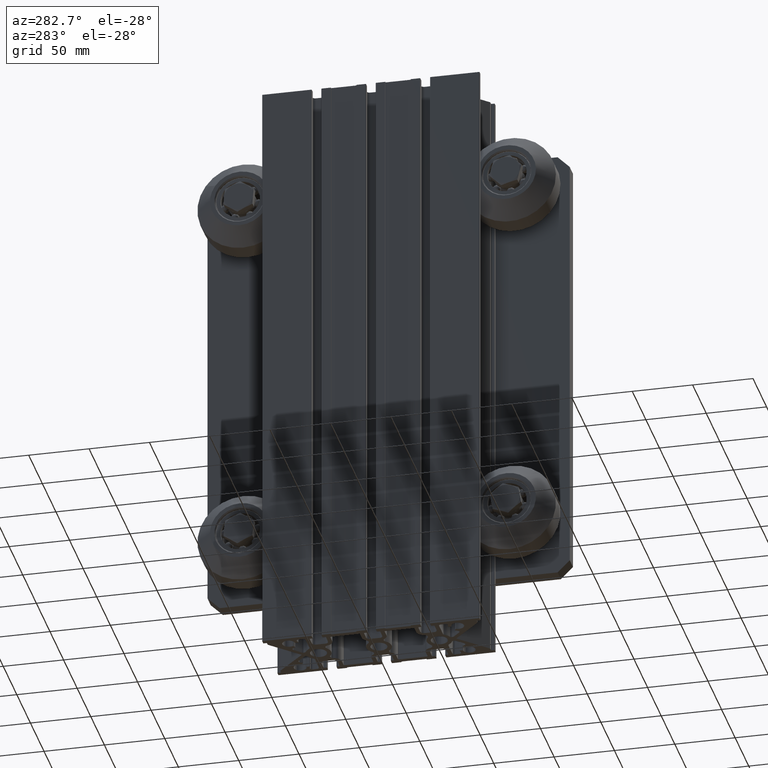
[diagram: clean part render]
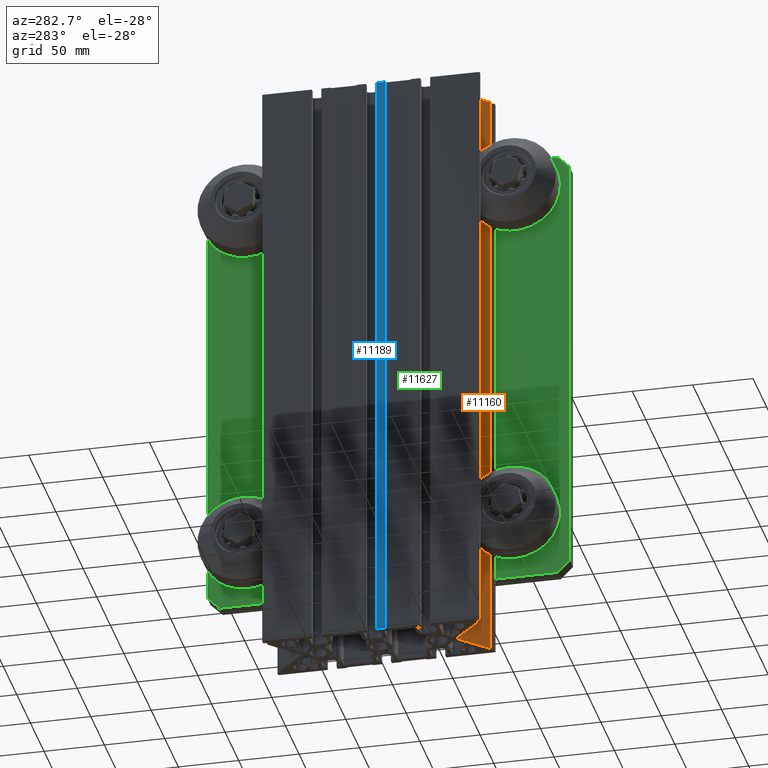
[diagram: same view with three faces highlighted in distinct colors, each labeled with its STEP entity id]
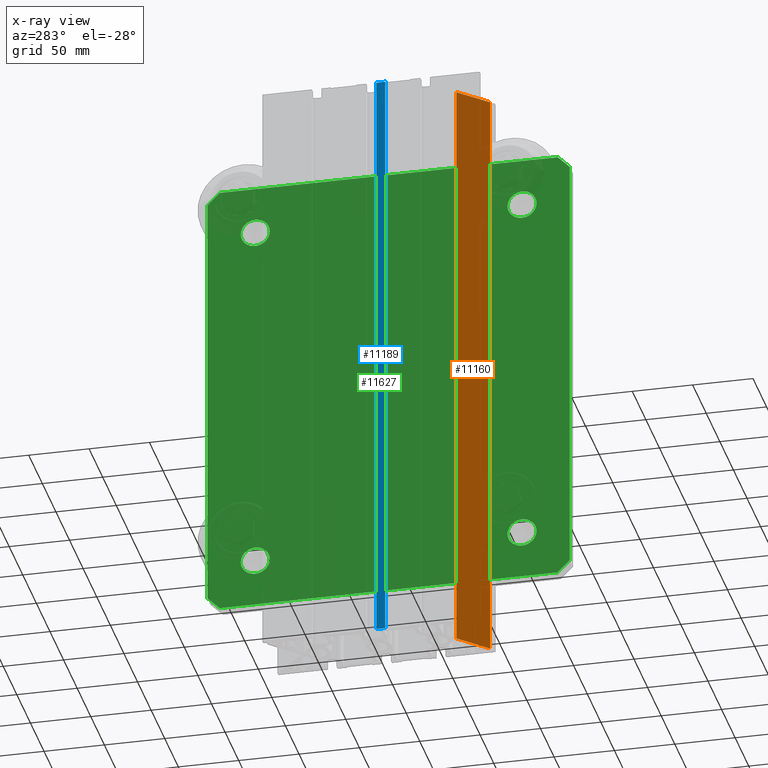
[diagram: x-ray of the same camera — body ghosted, the three highlighted faces saturated]
A machine part, auxiliary view with three faces highlighted in distinct colors.
The next image is the same camera in x-ray (body ghosted, the three faces saturated) — at least one of them is partly hidden behind the body in this view.
Their STEP definitions:

[orange] entity #11160 — the highlighted planar face has unit normal (-0.7071, -0.7071, 0).
#574=PLANE('',#12325);
#1016=FACE_OUTER_BOUND('',#1635,.T.);
#1635=EDGE_LOOP('',(#8406,#8407,#8408,#8409));
#2242=LINE('',#16866,#3114);
#2440=LINE('',#17563,#3312);
#2524=LINE('',#17843,#3396);
#2525=LINE('',#17845,#3397);
#3114=VECTOR('',#13407,10.);
#3312=VECTOR('',#14131,10.);
#3396=VECTOR('',#14339,10.);
#3397=VECTOR('',#14342,10.);
#4663=VERTEX_POINT('',#16863);
#4664=VERTEX_POINT('',#16865);
#4899=VERTEX_POINT('',#17560);
#4900=VERTEX_POINT('',#17562);
#5826=EDGE_CURVE('',#4663,#4664,#2242,.T.);
#6174=EDGE_CURVE('',#4899,#4900,#2440,.T.);
#6315=EDGE_CURVE('',#4899,#4664,#2524,.T.);
#6316=EDGE_CURVE('',#4900,#4663,#2525,.T.);
#8406=ORIENTED_EDGE('',*,*,#6315,.T.);
#8407=ORIENTED_EDGE('',*,*,#5826,.F.);
#8408=ORIENTED_EDGE('',*,*,#6316,.F.);
#8409=ORIENTED_EDGE('',*,*,#6174,.F.);
#11160=ADVANCED_FACE('',(#1016),#574,.T.);
#12325=AXIS2_PLACEMENT_3D('',#17844,#14340,#14341);
#13407=DIRECTION('',(0.707106781194663,-0.707106781178432,0.));
#14131=DIRECTION('',(-0.707106781194663,0.707106781178432,0.));
#14339=DIRECTION('',(0.,0.,1.));
#14340=DIRECTION('center_axis',(-0.707106781178432,-0.707106781194663,0.));
#14341=DIRECTION('ref_axis',(0.707106781194663,-0.707106781178432,0.));
#14342=DIRECTION('',(0.,0.,1.));
#16863=CARTESIAN_POINT('',(7.68511476678668E-9,-64.0000000013353,450.));
#16865=CARTESIAN_POINT('',(22.8535533879081,-86.8535533810338,450.));
#16866=CARTESIAN_POINT('',(7.68511476678668E-9,-64.0000000013353,450.));
#17560=CARTESIAN_POINT('',(22.8535533879081,-86.8535533810338,-50.));
#17562=CARTESIAN_POINT('',(7.68511476678668E-9,-64.0000000013353,-50.));
#17563=CARTESIAN_POINT('',(7.68511476678668E-9,-64.0000000013353,-50.));
#17843=CARTESIAN_POINT('',(22.8535533879081,-86.8535533810338,0.));
#17844=CARTESIAN_POINT('Origin',(7.68511476678668E-9,-64.0000000013353,
0.));
#17845=CARTESIAN_POINT('',(7.68511476678668E-9,-64.0000000013353,0.));

[blue] entity #11189 — the highlighted planar face has unit normal (-1, -0, 0).
#591=PLANE('',#12354);
#1045=FACE_OUTER_BOUND('',#1664,.T.);
#1664=EDGE_LOOP('',(#8522,#8523,#8524,#8525));
#2225=LINE('',#16808,#3097);
#2457=LINE('',#17621,#3329);
#2553=LINE('',#17901,#3425);
#2554=LINE('',#17903,#3426);
#3097=VECTOR('',#13366,10.);
#3329=VECTOR('',#14172,10.);
#3425=VECTOR('',#14426,10.);
#3426=VECTOR('',#14429,10.);
#4634=VERTEX_POINT('',#16805);
#4635=VERTEX_POINT('',#16807);
#4928=VERTEX_POINT('',#17618);
#4929=VERTEX_POINT('',#17620);
#5797=EDGE_CURVE('',#4634,#4635,#2225,.T.);
#6203=EDGE_CURVE('',#4928,#4929,#2457,.T.);
#6344=EDGE_CURVE('',#4928,#4635,#2553,.T.);
#6345=EDGE_CURVE('',#4929,#4634,#2554,.T.);
#8522=ORIENTED_EDGE('',*,*,#6344,.T.);
#8523=ORIENTED_EDGE('',*,*,#5797,.F.);
#8524=ORIENTED_EDGE('',*,*,#6345,.F.);
#8525=ORIENTED_EDGE('',*,*,#6203,.F.);
#11189=ADVANCED_FACE('',(#1045),#591,.T.);
#12354=AXIS2_PLACEMENT_3D('',#17902,#14427,#14428);
#13366=DIRECTION('',(1.18423789293356E-15,-1.,0.));
#14172=DIRECTION('',(-5.9211894646678E-16,1.,0.));
#14426=DIRECTION('',(0.,0.,1.));
#14427=DIRECTION('center_axis',(-1.,-5.9211894646678E-16,0.));
#14428=DIRECTION('ref_axis',(5.9211894646678E-16,-1.,0.));
#14429=DIRECTION('',(0.,0.,1.));
#16805=CARTESIAN_POINT('',(-29.9999999923147,-4.49999999043653,450.));
#16807=CARTESIAN_POINT('',(-29.9999999923147,-11.9999999904361,450.));
#16808=CARTESIAN_POINT('',(-29.9999999923147,-4.49999999043653,450.));
#17618=CARTESIAN_POINT('',(-29.9999999923147,-11.9999999904361,-50.));
#17620=CARTESIAN_POINT('',(-29.9999999923147,-4.49999999043653,-50.));
#17621=CARTESIAN_POINT('',(-29.9999999923147,-4.49999999043653,-50.));
#17901=CARTESIAN_POINT('',(-29.9999999923147,-11.9999999904361,0.));
#17902=CARTESIAN_POINT('Origin',(-29.9999999923147,-4.49999999043653,0.));
#17903=CARTESIAN_POINT('',(-29.9999999923147,-4.49999999043653,0.));

[green] entity #11627 — the highlighted planar face has unit normal (1, -0, 0).
#522=FACE_BOUND('',#2141,.T.);
#523=FACE_BOUND('',#2142,.T.);
#524=FACE_BOUND('',#2143,.T.);
#525=FACE_BOUND('',#2144,.T.);
#886=PLANE('',#13161);
#1483=FACE_OUTER_BOUND('',#2140,.T.);
#2140=EDGE_LOOP('',(#10810,#10811,#10812,#10813,#10814,#10815,#10816,#10817));
#2141=EDGE_LOOP('',(#10818));
#2142=EDGE_LOOP('',(#10819));
#2143=EDGE_LOOP('',(#10820));
#2144=EDGE_LOOP('',(#10821));
#3006=LINE('',#21142,#3878);
#3008=LINE('',#21146,#3880);
#3011=LINE('',#21152,#3883);
#3012=LINE('',#21154,#3884);
#3013=LINE('',#21156,#3885);
#3014=LINE('',#21158,#3886);
#3015=LINE('',#21160,#3887);
#3016=LINE('',#21161,#3888);
#3878=VECTOR('',#16491,10.);
#3880=VECTOR('',#16495,10.);
#3883=VECTOR('',#16500,10.);
#3884=VECTOR('',#16501,10.);
#3885=VECTOR('',#16502,10.);
#3886=VECTOR('',#16503,10.);
#3887=VECTOR('',#16504,10.);
#3888=VECTOR('',#16505,10.);
#4513=CIRCLE('',#13162,12.);
#4514=CIRCLE('',#13163,12.);
#4515=CIRCLE('',#13164,12.);
#4516=CIRCLE('',#13165,12.);
#5659=VERTEX_POINT('',#21139);
#5660=VERTEX_POINT('',#21141);
#5661=VERTEX_POINT('',#21145);
#5663=VERTEX_POINT('',#21151);
#5664=VERTEX_POINT('',#21153);
#5665=VERTEX_POINT('',#21155);
#5666=VERTEX_POINT('',#21157);
#5667=VERTEX_POINT('',#21159);
#5668=VERTEX_POINT('',#21162);
#5669=VERTEX_POINT('',#21164);
#5670=VERTEX_POINT('',#21166);
#5671=VERTEX_POINT('',#21168);
#7378=EDGE_CURVE('',#5659,#5660,#3006,.T.);
#7380=EDGE_CURVE('',#5661,#5660,#3008,.T.);
#7383=EDGE_CURVE('',#5659,#5663,#3011,.T.);
#7384=EDGE_CURVE('',#5664,#5663,#3012,.T.);
#7385=EDGE_CURVE('',#5664,#5665,#3013,.T.);
#7386=EDGE_CURVE('',#5666,#5665,#3014,.T.);
#7387=EDGE_CURVE('',#5666,#5667,#3015,.T.);
#7388=EDGE_CURVE('',#5661,#5667,#3016,.T.);
#7389=EDGE_CURVE('',#5668,#5668,#4513,.T.);
#7390=EDGE_CURVE('',#5669,#5669,#4514,.T.);
#7391=EDGE_CURVE('',#5670,#5670,#4515,.T.);
#7392=EDGE_CURVE('',#5671,#5671,#4516,.T.);
#10810=ORIENTED_EDGE('',*,*,#7378,.F.);
#10811=ORIENTED_EDGE('',*,*,#7383,.T.);
#10812=ORIENTED_EDGE('',*,*,#7384,.F.);
#10813=ORIENTED_EDGE('',*,*,#7385,.T.);
#10814=ORIENTED_EDGE('',*,*,#7386,.F.);
#10815=ORIENTED_EDGE('',*,*,#7387,.T.);
#10816=ORIENTED_EDGE('',*,*,#7388,.F.);
#10817=ORIENTED_EDGE('',*,*,#7380,.T.);
#10818=ORIENTED_EDGE('',*,*,#7389,.T.);
#10819=ORIENTED_EDGE('',*,*,#7390,.T.);
#10820=ORIENTED_EDGE('',*,*,#7391,.T.);
#10821=ORIENTED_EDGE('',*,*,#7392,.T.);
#11627=ADVANCED_FACE('',(#1483,#522,#523,#524,#525),#886,.F.);
#13161=AXIS2_PLACEMENT_3D('',#21150,#16498,#16499);
#13162=AXIS2_PLACEMENT_3D('',#21163,#16506,#16507);
#13163=AXIS2_PLACEMENT_3D('',#21165,#16508,#16509);
#13164=AXIS2_PLACEMENT_3D('',#21167,#16510,#16511);
#13165=AXIS2_PLACEMENT_3D('',#21169,#16512,#16513);
#16491=DIRECTION('',(-0.707106781186548,-0.707106781186548,0.));
#16495=DIRECTION('',(0.,1.,0.));
#16498=DIRECTION('center_axis',(0.,0.,1.));
#16499=DIRECTION('ref_axis',(1.,0.,0.));
#16500=DIRECTION('',(1.,0.,0.));
#16501=DIRECTION('',(-0.707106781186548,0.707106781186548,0.));
#16502=DIRECTION('',(0.,-1.,0.));
#16503=DIRECTION('',(0.707106781186548,0.707106781186548,0.));
#16504=DIRECTION('',(-1.,0.,0.));
#16505=DIRECTION('',(0.707106781186548,-0.707106781186548,0.));
#16506=DIRECTION('center_axis',(0.,0.,1.));
#16507=DIRECTION('ref_axis',(1.,0.,0.));
#16508=DIRECTION('center_axis',(0.,0.,1.));
#16509=DIRECTION('ref_axis',(1.,0.,0.));
#16510=DIRECTION('center_axis',(0.,0.,1.));
#16511=DIRECTION('ref_axis',(1.,0.,0.));
#16512=DIRECTION('center_axis',(0.,0.,1.));
#16513=DIRECTION('ref_axis',(1.,0.,0.));
#21139=CARTESIAN_POINT('',(-140.,190.,0.));
#21141=CARTESIAN_POINT('',(-150.,180.,0.));
#21142=CARTESIAN_POINT('',(-155.,175.,0.));
#21145=CARTESIAN_POINT('',(-150.,-180.,0.));
#21146=CARTESIAN_POINT('',(-150.,-190.,0.));
#21150=CARTESIAN_POINT('Origin',(0.,0.,0.));
#21151=CARTESIAN_POINT('',(140.,190.,0.));
#21152=CARTESIAN_POINT('',(-150.,190.,0.));
#21153=CARTESIAN_POINT('',(150.,180.,0.));
#21154=CARTESIAN_POINT('',(155.,175.,0.));
#21155=CARTESIAN_POINT('',(150.,-180.,0.));
#21156=CARTESIAN_POINT('',(150.,190.,0.));
#21157=CARTESIAN_POINT('',(140.,-190.,0.));
#21158=CARTESIAN_POINT('',(155.,-175.,0.));
#21159=CARTESIAN_POINT('',(-140.,-190.,0.));
#21160=CARTESIAN_POINT('',(150.,-190.,0.));
#21161=CARTESIAN_POINT('',(-155.,-175.,0.));
#21162=CARTESIAN_POINT('',(-122.5,-150.,0.));
#21163=CARTESIAN_POINT('Origin',(-110.5,-150.,0.));
#21164=CARTESIAN_POINT('',(-122.5,150.,0.));
#21165=CARTESIAN_POINT('Origin',(-110.5,150.,0.));
#21166=CARTESIAN_POINT('',(98.5,150.,0.));
#21167=CARTESIAN_POINT('Origin',(110.5,150.,0.));
#21168=CARTESIAN_POINT('',(98.5,-150.,0.));
#21169=CARTESIAN_POINT('Origin',(110.5,-150.,0.));